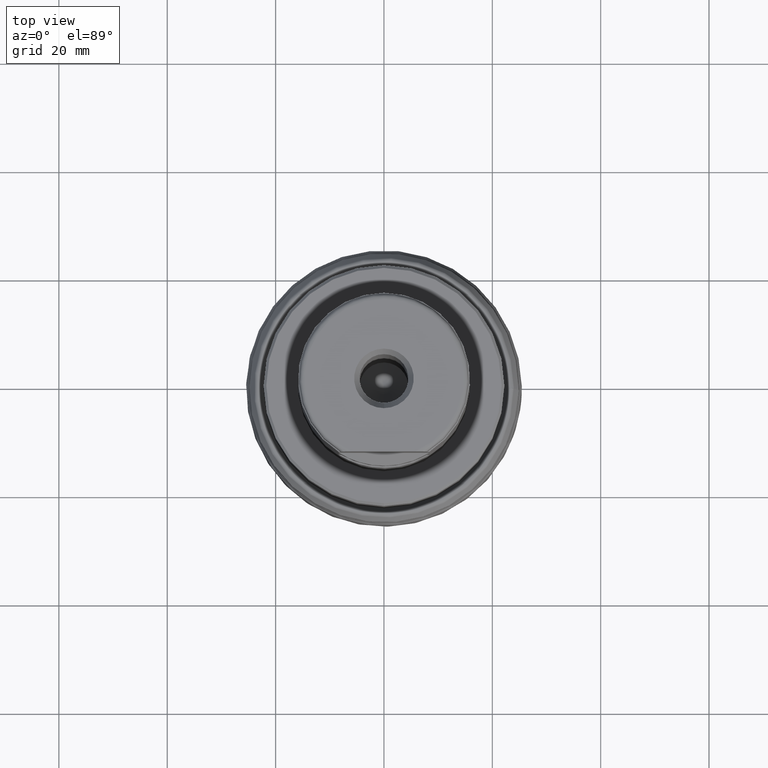
[diagram: clean part render]
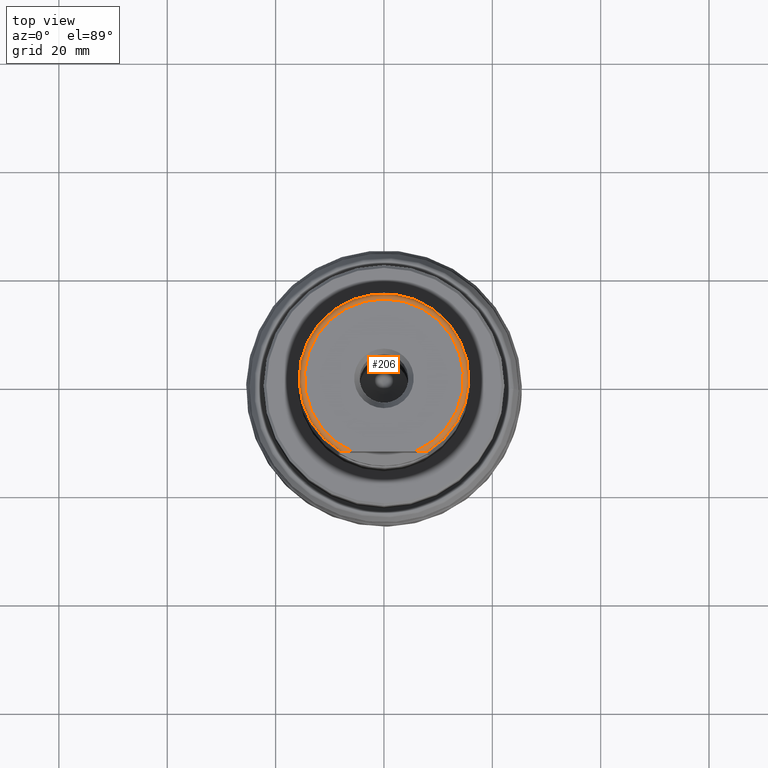
[diagram: same view with one face highlighted and labeled with its STEP entity id]
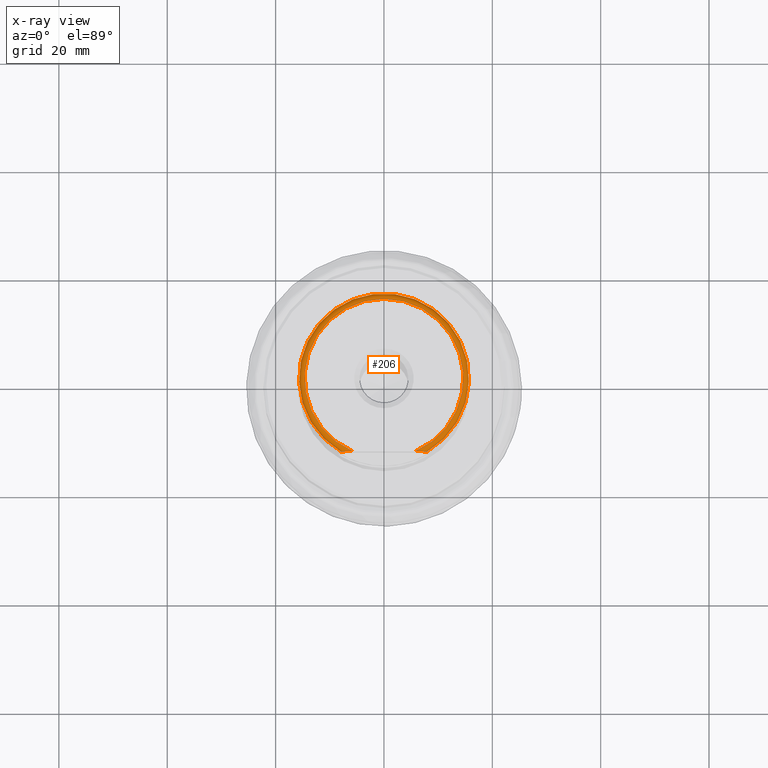
[diagram: x-ray of the same camera — body ghosted, the highlighted face saturated]
A machine part, top view. The second image highlights one B-rep face of the part: STEP entity #206.
The next image is the same camera in x-ray: the body ghosted, the highlighted face saturated — about 0% of this face is hidden behind the body in this view.
In plain terms, the highlighted toroidal blend (fillet) surface has major radius 14.675 mm and minor (blend) radius 1 mm.
Its self-contained STEP definition (entity closure, byte-faithful):
#159=TOROIDAL_SURFACE('',#942,14.675,1.);
#193=FACE_OUTER_BOUND('',#431,.T.);
#206=ADVANCED_FACE('',(#193),#159,.T.);
#276=CIRCLE('',#936,15.675);
#278=CIRCLE('',#939,14.675);
#431=EDGE_LOOP('',(#597,#598,#599,#600));
#597=ORIENTED_EDGE('',*,*,#817,.F.);
#598=ORIENTED_EDGE('',*,*,#824,.T.);
#599=ORIENTED_EDGE('',*,*,#820,.F.);
#600=ORIENTED_EDGE('',*,*,#825,.T.);
#746=VERTEX_POINT('',#1640);
#747=VERTEX_POINT('',#1642);
#749=VERTEX_POINT('',#1648);
#750=VERTEX_POINT('',#1649);
#817=EDGE_CURVE('',#746,#747,#276,.T.);
#820=EDGE_CURVE('',#749,#750,#278,.T.);
#824=EDGE_CURVE('',#746,#750,#908,.T.);
#825=EDGE_CURVE('',#749,#747,#909,.T.);
#908=B_SPLINE_CURVE_WITH_KNOTS('',3,(#1661,#1662,#1663,#1664,#1665,#1666,
#1667,#1668),.UNSPECIFIED.,.F.,.F.,(4,2,2,4),(0.,0.249999999999999,0.499999999999998,
1.),.UNSPECIFIED.);
#909=B_SPLINE_CURVE_WITH_KNOTS('',3,(#1669,#1670,#1671,#1672,#1673,#1674,
#1675,#1676),.UNSPECIFIED.,.F.,.F.,(4,2,2,4),(0.,0.500000000000002,0.750000000000001,
1.),.UNSPECIFIED.);
#936=AXIS2_PLACEMENT_3D('',#1641,#1042,#1043);
#939=AXIS2_PLACEMENT_3D('',#1647,#1049,#1050);
#942=AXIS2_PLACEMENT_3D('',#1677,#1056,#1057);
#1042=DIRECTION('',(0.,-1.17145536458252E-15,-1.));
#1043=DIRECTION('',(0.,-1.,8.85345314693108E-16));
#1049=DIRECTION('',(0.,1.17145536458252E-15,1.));
#1050=DIRECTION('',(0.,-1.,9.45675489459249E-16));
#1056=DIRECTION('',(0.,1.17145536458252E-15,1.));
#1057=DIRECTION('',(0.,-1.,8.85345314693108E-16));
#1640=CARTESIAN_POINT('',(-7.98721893028867,-13.4873999999999,113.299999999989));
#1641=CARTESIAN_POINT('',(0.,1.327258928072E-13,113.3));
#1642=CARTESIAN_POINT('',(7.987218930266,-13.4873999999999,113.3));
#1647=CARTESIAN_POINT('',(0.,1.33897348171783E-13,114.3));
#1648=CARTESIAN_POINT('',(5.78322282468839,-13.4873999999999,114.3));
#1649=CARTESIAN_POINT('',(-5.78322282468861,-13.4873999999999,114.3));
#1661=CARTESIAN_POINT('',(-7.98721893026685,-13.4873999999999,113.299999999988));
#1662=CARTESIAN_POINT('',(-7.98721893027203,-13.4873999999999,113.52020277002));
#1663=CARTESIAN_POINT('',(-7.83736774434976,-13.4873999999999,113.715154682752));
#1664=CARTESIAN_POINT('',(-7.48623082979292,-13.4873999999999,113.980139720299));
#1665=CARTESIAN_POINT('',(-7.28172032421557,-13.4873999999999,114.067554950671));
#1666=CARTESIAN_POINT('',(-6.65729293981294,-13.4873999999999,114.2609297127));
#1667=CARTESIAN_POINT('',(-6.21637245039722,-13.4873999999999,114.3));
#1668=CARTESIAN_POINT('',(-5.78322282468861,-13.4873999999999,114.3));
#1669=CARTESIAN_POINT('',(5.78322282468839,-13.4873999999999,114.3));
#1670=CARTESIAN_POINT('',(6.21394869343171,-13.4873999999999,114.3));
#1671=CARTESIAN_POINT('',(6.65580566004191,-13.4873999999999,114.261664403719));
#1672=CARTESIAN_POINT('',(7.28486381477451,-13.4873999999999,114.06644362587));
#1673=CARTESIAN_POINT('',(7.48748729423042,-13.4873999999999,113.979507582041));
#1674=CARTESIAN_POINT('',(7.8384226998053,-13.4873999999999,113.714040424023));
#1675=CARTESIAN_POINT('',(7.98721893026599,-13.4873999999999,113.522383261353));
#1676=CARTESIAN_POINT('',(7.98721893026599,-13.4873999999999,113.3));
#1677=CARTESIAN_POINT('',(0.,1.327258928072E-13,113.3));